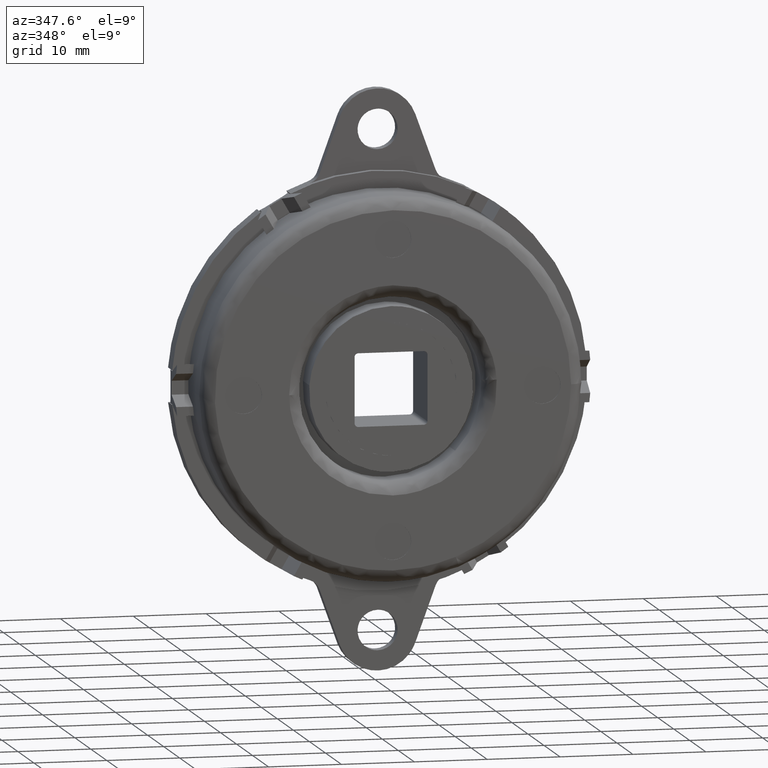
[diagram: clean part render]
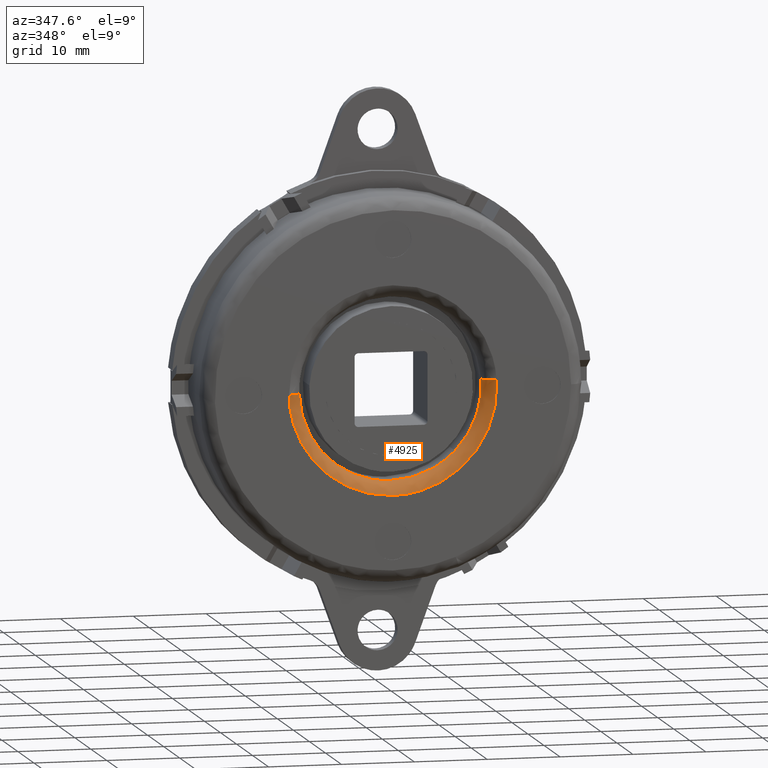
[diagram: same view with one face highlighted and labeled with its STEP entity id]
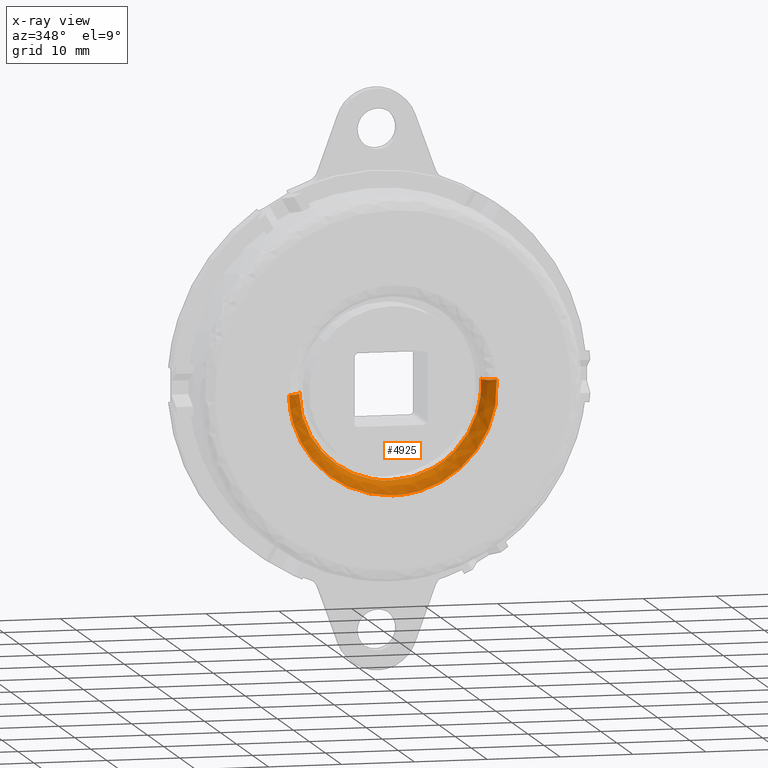
[diagram: x-ray of the same camera — body ghosted, the highlighted face saturated]
A machine part, auxiliary view. The second image highlights one B-rep face of the part: STEP entity #4925.
The next image is the same camera in x-ray: the body ghosted, the highlighted face saturated — about 0% of this face is hidden behind the body in this view.
In plain terms, the highlighted face is a freeform B-spline surface patch.
Its self-contained STEP definition (entity closure, byte-faithful):
#2161=CARTESIAN_POINT('',(-12.499013052546919,-9.440000000766350,-0.157075498603938));
#2162=VERTEX_POINT('',#2161);
#2178=CARTESIAN_POINT('',(0.0,-9.439999999999900,-12.500000000000000));
#2179=VERTEX_POINT('',#2178);
#2180=CARTESIAN_POINT('',(-12.499013052546923,-9.440000000766350,-0.157075498603938));
#2181=CARTESIAN_POINT('',(-12.343899123718900,-9.439999999999900,-12.500000000000004));
#2182=CARTESIAN_POINT('',(0.0,-9.439999999999900,-12.500000000000000));
#2190=(BOUNDED_CURVE()B_SPLINE_CURVE(2,(#2180,#2181,#2182),.UNSPECIFIED.,.F.,.U.)B_SPLINE_CURVE_WITH_KNOTS((3,3),(0.252215704080017,0.500000000000000),.UNSPECIFIED.)CURVE()GEOMETRIC_REPRESENTATION_ITEM()RATIONAL_B_SPLINE_CURVE((0.994854295639995,0.709702639986285,1.0))REPRESENTATION_ITEM(''));
#2191=EDGE_CURVE('',#2162,#2179,#2190,.T.);
#2193=CARTESIAN_POINT('',(8.915630920507336,-9.439999999999905,-8.761365492278776));
#2194=VERTEX_POINT('',#2193);
#2195=CARTESIAN_POINT('',(0.0,-9.439999999999900,-12.500000000000000));
#2196=CARTESIAN_POINT('',(5.241685535458116,-9.439999999999900,-12.500000000000009));
#2197=CARTESIAN_POINT('',(8.915630920507336,-9.439999999999905,-8.761365492278776));
#2205=(BOUNDED_CURVE()B_SPLINE_CURVE(2,(#2195,#2196,#2197),.UNSPECIFIED.,.F.,.U.)B_SPLINE_CURVE_WITH_KNOTS((3,3),(0.500000000000000,0.626316768133921),.UNSPECIFIED.)CURVE()GEOMETRIC_REPRESENTATION_ITEM()RATIONAL_B_SPLINE_CURVE((1.0,0.852010700764574,0.853569641511729))REPRESENTATION_ITEM(''));
#2206=EDGE_CURVE('',#2179,#2194,#2205,.T.);
#2324=CARTESIAN_POINT('',(12.469570923001161,-9.440000000766082,0.871665644753662));
#2325=VERTEX_POINT('',#2324);
#2326=CARTESIAN_POINT('',(8.915630920507336,-9.439999999999905,-8.761365492278776));
#2327=CARTESIAN_POINT('',(12.499999999999996,-9.439999999999900,-5.113884508066840));
#2328=CARTESIAN_POINT('',(12.500000000000000,-9.439999999999900,-9.462178E-016));
#2329=CARTESIAN_POINT('',(12.499999999999996,-9.439999999999898,0.436363948494774));
#2330=CARTESIAN_POINT('',(12.469570923001168,-9.440000000766082,0.871665644753662));
#2338=(BOUNDED_CURVE()B_SPLINE_CURVE(2,(#2326,#2327,#2328,#2329,#2330),.UNSPECIFIED.,.F.,.U.)B_SPLINE_CURVE_WITH_KNOTS((3,2,3),(0.626316768133921,0.750000000000000,0.762166313466539),.UNSPECIFIED.)CURVE()GEOMETRIC_REPRESENTATION_ITEM()RATIONAL_B_SPLINE_CURVE((0.853569641511729,0.855096080421975,1.0,0.985746277150768,0.972879876383528))REPRESENTATION_ITEM(''));
#2339=EDGE_CURVE('',#2194,#2325,#2338,.T.);
#4831=CARTESIAN_POINT('',(12.473820946634952,-9.317614259788192,0.871962044090079));
#4832=CARTESIAN_POINT('',(12.498776101635332,-9.317614259788192,0.514966992206656));
#4833=CARTESIAN_POINT('',(12.503273062748223,-9.317614259788190,0.157129034226945));
#4834=CARTESIAN_POINT('',(12.660402096975172,-9.317614259788188,-12.346144028521284));
#4835=CARTESIAN_POINT('',(0.157129034226946,-9.317614259788190,-12.503273062748223));
#4836=CARTESIAN_POINT('',(-12.346144028521278,-9.317614259788188,-12.660402096975172));
#4837=CARTESIAN_POINT('',(-12.503273062748223,-9.317614259788190,-0.157129034226948));
#4838=CARTESIAN_POINT('',(12.333437280499465,-11.336465785637094,0.862148753599215));
#4839=CARTESIAN_POINT('',(12.358111583613091,-11.336465785637094,0.509171418050669));
#4840=CARTESIAN_POINT('',(12.362557934741266,-11.336465785637094,0.155360662693036));
#4841=CARTESIAN_POINT('',(12.517918597434303,-11.336465785637092,-12.207197272048232));
#4842=CARTESIAN_POINT('',(0.155360662693037,-11.336465785637094,-12.362557934741268));
#4843=CARTESIAN_POINT('',(-12.207197272048228,-11.336465785637092,-12.517918597434303));
#4844=CARTESIAN_POINT('',(-12.362557934741266,-11.336465785637094,-0.155360662693039));
#4845=CARTESIAN_POINT('',(14.347374278952625,-11.195739660321690,1.002929724350088));
#4846=CARTESIAN_POINT('',(14.376077669077546,-11.195739660321683,0.592314432771183));
#4847=CARTESIAN_POINT('',(14.381250068495545,-11.195739660321694,0.180729631585140));
#4848=CARTESIAN_POINT('',(14.561979700080689,-11.195739660321687,-14.200520436910407));
#4849=CARTESIAN_POINT('',(0.180729631585142,-11.195739660321694,-14.381250068495545));
#4850=CARTESIAN_POINT('',(-14.200520436910406,-11.195739660321687,-14.561979700080689));
#4851=CARTESIAN_POINT('',(-14.381250068495545,-11.195739660321694,-0.180729631585143));
#4859=(BOUNDED_SURFACE()B_SPLINE_SURFACE(2,2,((#4831,#4838,#4845),(#4832,#4839,#4846),(#4833,#4840,#4847),(#4834,#4841,#4848),(#4835,#4842,#4849),(#4836,#4843,#4850),(#4837,#4844,#4851)),.UNSPECIFIED.,.F.,.F.,.U.)B_SPLINE_SURFACE_WITH_KNOTS((3,2,2,3),(3,3),(0.0,0.953179761674815,24.782696529143291,48.612213296611770),(0.0,3.207379001196725),.UNSPECIFIED.)GEOMETRIC_REPRESENTATION_ITEM()RATIONAL_B_SPLINE_SURFACE(((0.889999398810075,0.584039678857502,0.889999375945013),(0.899812970924118,0.590479588270468,0.899812947806934),(0.910479896250445,0.597479489225810,0.910479872859216),(0.643806508772714,0.422481798451445,0.643806492232618),(0.910479896250445,0.597479489225810,0.910479872859216),(0.643806508772714,0.422481798451445,0.643806492232618),(0.910479896250445,0.597479489225810,0.910479872859216)))REPRESENTATION_ITEM('')SURFACE());
#4860=ORIENTED_EDGE('',*,*,#2339,.F.);
#4861=ORIENTED_EDGE('',*,*,#2206,.F.);
#4862=ORIENTED_EDGE('',*,*,#2191,.F.);
#4863=CARTESIAN_POINT('',(-14.258874089063021,-11.199999999999950,-0.179191728938811));
#4864=VERTEX_POINT('',#4863);
#4865=CARTESIAN_POINT('',(-12.499013052546921,-9.440000000766350,-0.157075498603938));
#4866=CARTESIAN_POINT('',(-12.499013054080473,-11.199999997438388,-0.157075498561171));
#4867=CARTESIAN_POINT('',(-14.258874089063015,-11.199999999999951,-0.179191728938811));
#4875=(BOUNDED_CURVE()B_SPLINE_CURVE(2,(#4865,#4866,#4867),.UNSPECIFIED.,.F.,.U.)B_SPLINE_CURVE_WITH_KNOTS((3,3),(-1.725134642388644,-0.274865358210696),.UNSPECIFIED.)CURVE()GEOMETRIC_REPRESENTATION_ITEM()RATIONAL_B_SPLINE_CURVE((0.883342149334380,0.624617224553181,0.883342149120538))REPRESENTATION_ITEM(''));
#4876=EDGE_CURVE('',#2162,#4864,#4875,.T.);
#4877=ORIENTED_EDGE('',*,*,#4876,.T.);
#4878=CARTESIAN_POINT('',(0.0,-11.199999999999999,-14.260000000000000));
#4879=VERTEX_POINT('',#4878);
#4880=CARTESIAN_POINT('',(0.0,-11.199999999999999,-14.260000000000000));
#4881=CARTESIAN_POINT('',(-14.081920120047016,-11.199999999999999,-14.260000000000009));
#4882=CARTESIAN_POINT('',(-14.258874089063019,-11.199999999999950,-0.179191728938811));
#4890=(BOUNDED_CURVE()B_SPLINE_CURVE(2,(#4880,#4881,#4882),.UNSPECIFIED.,.F.,.U.)B_SPLINE_CURVE_WITH_KNOTS((3,3),(0.500000000000000,0.747784295916342),.UNSPECIFIED.)CURVE()GEOMETRIC_REPRESENTATION_ITEM()RATIONAL_B_SPLINE_CURVE((1.0,0.709702639990550,0.994854295631616))REPRESENTATION_ITEM(''));
#4891=EDGE_CURVE('',#4879,#4864,#4890,.T.);
#4892=ORIENTED_EDGE('',*,*,#4891,.F.);
#4893=CARTESIAN_POINT('',(14.225286508910170,-11.199999999999950,0.994396167486712));
#4894=VERTEX_POINT('',#4893);
#4895=CARTESIAN_POINT('',(14.225286508910168,-11.199999999999948,0.994396167486712));
#4896=CARTESIAN_POINT('',(14.259999999999996,-11.200000000000005,0.497803992398068));
#4897=CARTESIAN_POINT('',(14.260000000000000,-11.199999999999999,-9.462178E-016));
#4898=CARTESIAN_POINT('',(14.260000000000002,-11.199999999999999,-14.260000000000002));
#4899=CARTESIAN_POINT('',(0.0,-11.199999999999999,-14.260000000000000));
#4907=(BOUNDED_CURVE()B_SPLINE_CURVE(2,(#4895,#4896,#4897,#4898,#4899),.UNSPECIFIED.,.F.,.U.)B_SPLINE_CURVE_WITH_KNOTS((3,2,3),(0.237833686534540,0.250000000000000,0.500000000000000),.UNSPECIFIED.)CURVE()GEOMETRIC_REPRESENTATION_ITEM()RATIONAL_B_SPLINE_CURVE((0.972879876385809,0.985746277152032,1.0,0.707106781186548,1.0))REPRESENTATION_ITEM(''));
#4908=EDGE_CURVE('',#4894,#4879,#4907,.T.);
#4909=ORIENTED_EDGE('',*,*,#4908,.F.);
#4910=CARTESIAN_POINT('',(12.469570923001168,-9.440000000766080,0.871665644753662));
#4911=CARTESIAN_POINT('',(12.469570924534032,-11.199999999894299,0.871665644799883));
#4912=CARTESIAN_POINT('',(14.225286508910168,-11.199999999999950,0.994396167486712));
#4920=(BOUNDED_CURVE()B_SPLINE_CURVE(2,(#4910,#4911,#4912),.UNSPECIFIED.,.F.,.U.)B_SPLINE_CURVE_WITH_KNOTS((3,3),(-1.725134642388955,-0.274865356779717),.UNSPECIFIED.)CURVE()GEOMETRIC_REPRESENTATION_ITEM()RATIONAL_B_SPLINE_CURVE((0.863472075061300,0.610566960027691,0.863472075351242))REPRESENTATION_ITEM(''));
#4921=EDGE_CURVE('',#2325,#4894,#4920,.T.);
#4922=ORIENTED_EDGE('',*,*,#4921,.F.);
#4923=EDGE_LOOP('',(#4860,#4861,#4862,#4877,#4892,#4909,#4922));
#4924=FACE_OUTER_BOUND('',#4923,.T.);
#4925=ADVANCED_FACE('',(#4924),#4859,.T.);